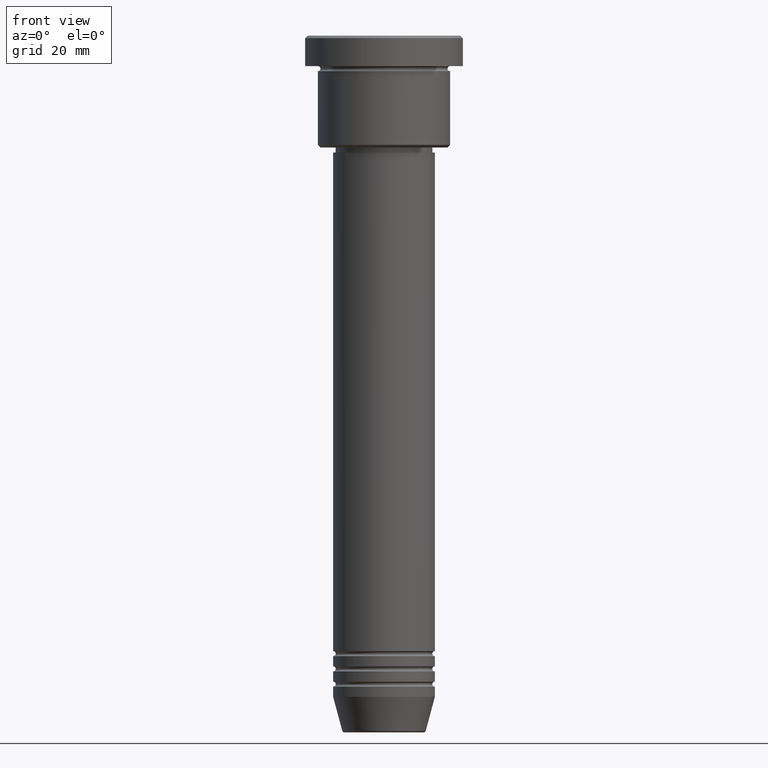
[diagram: clean part render]
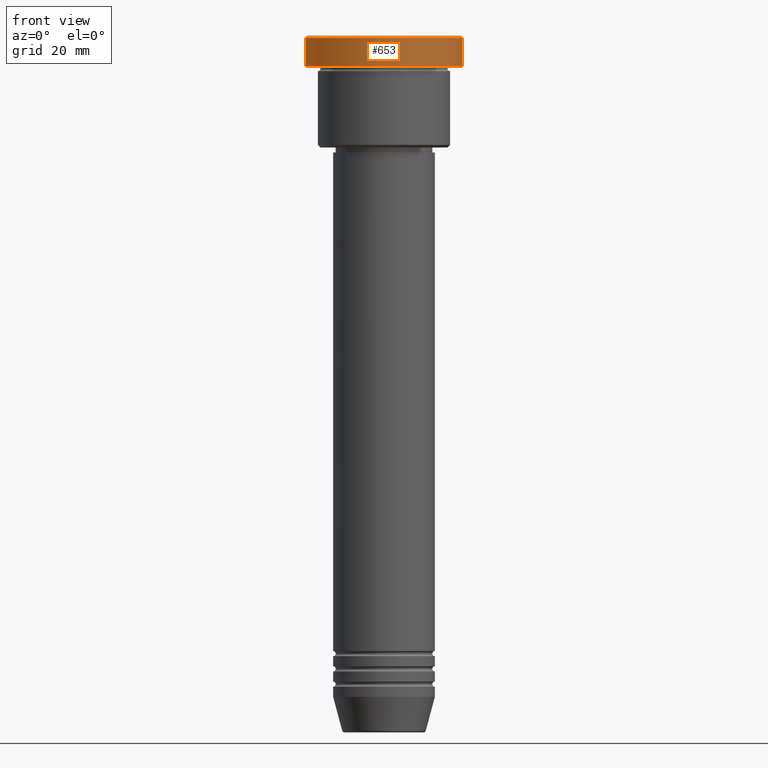
[diagram: same view with one face highlighted and labeled with its STEP entity id]
A machine part, front view. The second image highlights one B-rep face of the part: STEP entity #653.
In plain terms, the highlighted cylindrical surface (partial cylindrical patch) has radius 15.5 mm, axis along (-0, -0, 1).
Its self-contained STEP definition (entity closure, byte-faithful):
#24 = CARTESIAN_POINT ( 'NONE',  ( 0.000000000000000000, 0.000000000000000000, -0.5000000000000264233 ) ) ;
#26 = ORIENTED_EDGE ( 'NONE', *, *, #120, .T. ) ;
#43 = DIRECTION ( 'NONE',  ( -0.000000000000000000, -0.000000000000000000, 1.000000000000000000 ) ) ;
#55 = DIRECTION ( 'NONE',  ( -0.000000000000000000, -0.000000000000000000, 1.000000000000000000 ) ) ;
#120 = EDGE_CURVE ( 'NONE', #756, #351, #782, .T. ) ;
#149 = CYLINDRICAL_SURFACE ( 'NONE', #205, 15.50000000000000000 ) ;
#153 = CARTESIAN_POINT ( 'NONE',  ( 0.000000000000000000, 0.000000000000000000, -5.999999999999995559 ) ) ;
#202 = AXIS2_PLACEMENT_3D ( 'NONE', #153, #43, #511 ) ;
#205 = AXIS2_PLACEMENT_3D ( 'NONE', #1044, #55, #415 ) ;
#284 = CIRCLE ( 'NONE', #696, 15.50000000000000000 ) ;
#351 = VERTEX_POINT ( 'NONE', #903 ) ;
#359 = ORIENTED_EDGE ( 'NONE', *, *, #769, .T. ) ;
#387 = DIRECTION ( 'NONE',  ( 0.000000000000000000, 0.000000000000000000, -1.000000000000000000 ) ) ;
#415 = DIRECTION ( 'NONE',  ( 1.000000000000000000, 0.000000000000000000, 0.000000000000000000 ) ) ;
#434 = VERTEX_POINT ( 'NONE', #656 ) ;
#459 = ORIENTED_EDGE ( 'NONE', *, *, #944, .T. ) ;
#484 = DIRECTION ( 'NONE',  ( -0.000000000000000000, -0.000000000000000000, 1.000000000000000000 ) ) ;
#511 = DIRECTION ( 'NONE',  ( 1.000000000000000000, 0.000000000000000000, 0.000000000000000000 ) ) ;
#523 = DIRECTION ( 'NONE',  ( -0.000000000000000000, -0.000000000000000000, 1.000000000000000000 ) ) ;
#557 = CARTESIAN_POINT ( 'NONE',  ( -15.50000000000000000, 1.898202538678397557E-15, 0.000000000000000000 ) ) ;
#574 = LINE ( 'NONE', #557, #842 ) ;
#591 = FACE_OUTER_BOUND ( 'NONE', #885, .T. ) ;
#632 = LINE ( 'NONE', #705, #858 ) ;
#638 = VERTEX_POINT ( 'NONE', #1144 ) ;
#653 = ADVANCED_FACE ( 'NONE', ( #591 ), #149, .T. ) ;
#656 = CARTESIAN_POINT ( 'NONE',  ( 15.50000000000000000, 0.000000000000000000, -0.5000000000000264233 ) ) ;
#696 = AXIS2_PLACEMENT_3D ( 'NONE', #24, #387, #739 ) ;
#705 = CARTESIAN_POINT ( 'NONE',  ( 15.50000000000000000, 0.000000000000000000, 0.000000000000000000 ) ) ;
#736 = ORIENTED_EDGE ( 'NONE', *, *, #992, .F. ) ;
#739 = DIRECTION ( 'NONE',  ( 1.000000000000000000, 0.000000000000000000, 0.000000000000000000 ) ) ;
#756 = VERTEX_POINT ( 'NONE', #1086 ) ;
#769 = EDGE_CURVE ( 'NONE', #351, #434, #632, .T. ) ;
#782 = CIRCLE ( 'NONE', #202, 15.50000000000000000 ) ;
#842 = VECTOR ( 'NONE', #484, 1000.000000000000000 ) ;
#858 = VECTOR ( 'NONE', #523, 1000.000000000000000 ) ;
#885 = EDGE_LOOP ( 'NONE', ( #736, #26, #359, #459 ) ) ;
#903 = CARTESIAN_POINT ( 'NONE',  ( 15.50000000000000000, 0.000000000000000000, -5.999999999999995559 ) ) ;
#944 = EDGE_CURVE ( 'NONE', #434, #638, #284, .T. ) ;
#992 = EDGE_CURVE ( 'NONE', #756, #638, #574, .T. ) ;
#1044 = CARTESIAN_POINT ( 'NONE',  ( 0.000000000000000000, 0.000000000000000000, 0.000000000000000000 ) ) ;
#1086 = CARTESIAN_POINT ( 'NONE',  ( -15.50000000000000000, 1.898202538678397557E-15, -5.999999999999995559 ) ) ;
#1144 = CARTESIAN_POINT ( 'NONE',  ( -15.50000000000000000, 1.898202538678397557E-15, -0.5000000000000264233 ) ) ;